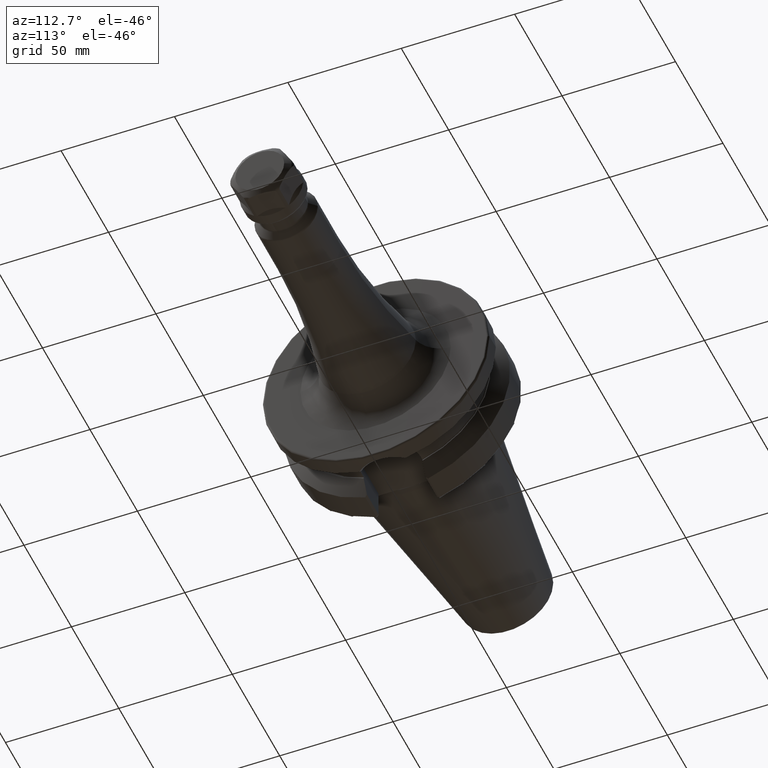
[diagram: clean part render]
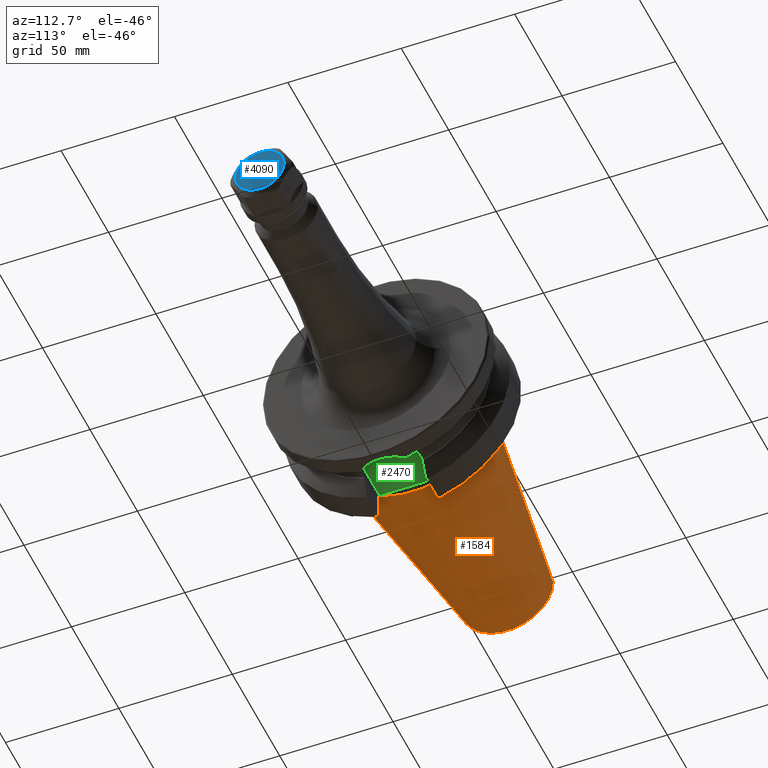
[diagram: same view with three faces highlighted in distinct colors, each labeled with its STEP entity id]
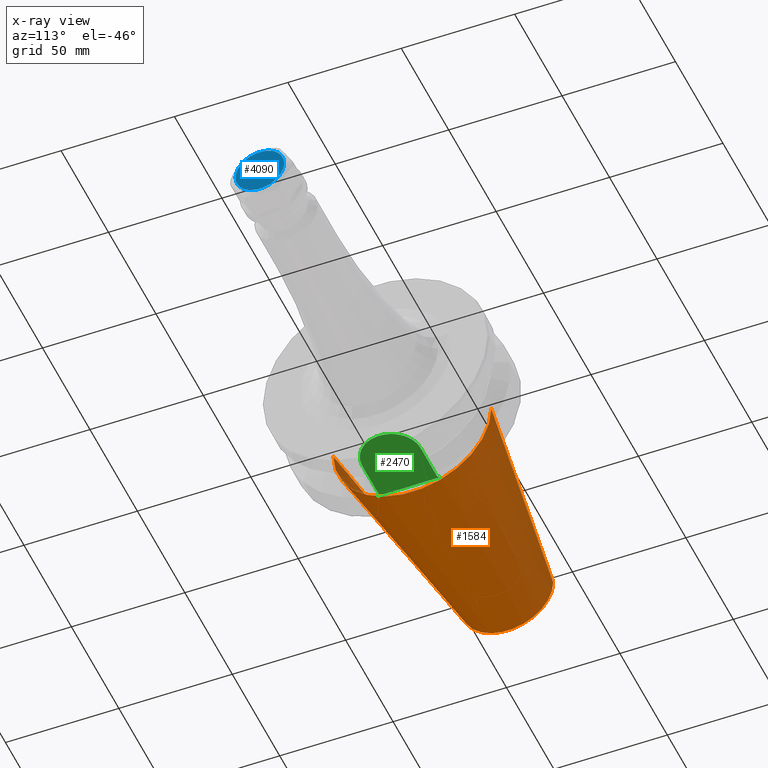
[diagram: x-ray of the same camera — body ghosted, the three highlighted faces saturated]
A machine part, auxiliary view with three faces highlighted in distinct colors.
The next image is the same camera in x-ray (body ghosted, the three faces saturated) — at least one of them is partly hidden behind the body in this view.
Their STEP definitions:

[orange] entity #1584 — the highlighted conical surface has half-angle 8.298 deg.
#32=CARTESIAN_POINT('',(-1.009443186692E2,0.E0,0.E0));
#33=DIRECTION('',(-1.E0,0.E0,0.E0));
#34=DIRECTION('',(0.E0,1.E0,0.E0));
#35=AXIS2_PLACEMENT_3D('',#32,#33,#34);
#47=DIRECTION('',(-9.895312636440E-1,-1.443186691705E-1,0.E0));
#48=VECTOR('',#47,1.013865167670E2);
#49=CARTESIAN_POINT('',(-6.191906162849E-1,3.483469384295E1,0.E0));
#50=LINE('',#49,#48);
#51=DIRECTION('',(-9.895312636440E-1,1.443186691705E-1,0.E0));
#52=VECTOR('',#51,1.013865167670E2);
#53=CARTESIAN_POINT('',(-6.191906162849E-1,-3.483469384295E1,0.E0));
#54=LINE('',#53,#52);
#55=CARTESIAN_POINT('',(-6.191906162850E-1,0.E0,0.E0));
#56=DIRECTION('',(-1.E0,0.E0,0.E0));
#57=DIRECTION('',(0.E0,1.E0,0.E0));
#58=AXIS2_PLACEMENT_3D('',#55,#56,#57);
#1244=CARTESIAN_POINT('',(-1.009443186692E2,2.020272667130E1,0.E0));
#1246=VERTEX_POINT('',#1244);
#1248=CARTESIAN_POINT('',(-1.009443186692E2,-2.020272667130E1,0.E0));
#1250=VERTEX_POINT('',#1248);
#1463=CARTESIAN_POINT('',(-6.191906162849E-1,3.483469384295E1,0.E0));
#1464=VERTEX_POINT('',#1463);
#1465=CARTESIAN_POINT('',(-6.191906162849E-1,-3.483469384295E1,0.E0));
#1466=VERTEX_POINT('',#1465);
#1572=CARTESIAN_POINT('',(-5.078175464273E1,0.E0,0.E0));
#1573=DIRECTION('',(1.E0,0.E0,0.E0));
#1574=DIRECTION('',(0.E0,-1.E0,0.E0));
#1575=AXIS2_PLACEMENT_3D('',#1572,#1573,#1574);
#1576=CONICAL_SURFACE('',#1575,2.751871025712E1,8.297826828206E0);
#1577=ORIENTED_EDGE('',*,*,#1562,.T.);
#1578=ORIENTED_EDGE('',*,*,#1539,.T.);
#1579=ORIENTED_EDGE('',*,*,#1566,.F.);
#1581=ORIENTED_EDGE('',*,*,#1580,.F.);
#1582=EDGE_LOOP('',(#1577,#1578,#1579,#1581));
#1583=FACE_OUTER_BOUND('',#1582,.F.);
#1584=ADVANCED_FACE('',(#1583),#1576,.T.);
#36=CIRCLE('',#35,2.020272667130E1);
#59=CIRCLE('',#58,3.483469384295E1);
#1539=EDGE_CURVE('',#1246,#1250,#36,.T.);
#1562=EDGE_CURVE('',#1464,#1246,#50,.T.);
#1566=EDGE_CURVE('',#1466,#1250,#54,.T.);
#1580=EDGE_CURVE('',#1464,#1466,#59,.T.);

[blue] entity #4090 — the highlighted planar face has unit normal (1, 0, 0).
#3473=CARTESIAN_POINT('',(1.78E1,0.E0,0.E0));
#3474=DIRECTION('',(-1.E0,0.E0,0.E0));
#3475=DIRECTION('',(0.E0,1.E0,0.E0));
#3476=AXIS2_PLACEMENT_3D('',#3473,#3474,#3475);
#3839=CARTESIAN_POINT('',(1.78E1,0.E0,0.E0));
#3840=DIRECTION('',(1.E0,0.E0,0.E0));
#3841=DIRECTION('',(0.E0,1.E0,0.E0));
#3842=AXIS2_PLACEMENT_3D('',#3839,#3840,#3841);
#4006=CARTESIAN_POINT('',(1.78E1,1.075E1,0.E0));
#4007=CARTESIAN_POINT('',(1.78E1,-1.075E1,0.E0));
#4008=VERTEX_POINT('',#4006);
#4009=VERTEX_POINT('',#4007);
#4079=CARTESIAN_POINT('',(1.78E1,0.E0,0.E0));
#4080=DIRECTION('',(1.E0,0.E0,0.E0));
#4081=DIRECTION('',(0.E0,-1.E0,0.E0));
#4082=AXIS2_PLACEMENT_3D('',#4079,#4080,#4081);
#4083=PLANE('',#4082);
#4085=ORIENTED_EDGE('',*,*,#4084,.T.);
#4087=ORIENTED_EDGE('',*,*,#4086,.F.);
#4088=EDGE_LOOP('',(#4085,#4087));
#4089=FACE_OUTER_BOUND('',#4088,.F.);
#4090=ADVANCED_FACE('',(#4089),#4083,.T.);
#3477=CIRCLE('',#3476,1.075E1);
#3843=CIRCLE('',#3842,1.075E1);
#4084=EDGE_CURVE('',#4008,#4009,#3477,.T.);
#4086=EDGE_CURVE('',#4008,#4009,#3843,.T.);

[green] entity #2470 — the highlighted planar face has unit normal (0, 0, 1).
#116=CARTESIAN_POINT('',(3.E0,5.151759408202E0,-3.52E1));
#117=CARTESIAN_POINT('',(3.E0,4.661054534870E0,-3.52E1));
#118=CARTESIAN_POINT('',(2.985185415827E0,3.679726334622E0,-3.52E1));
#119=CARTESIAN_POINT('',(2.950323079572E0,2.207949548567E0,-3.52E1));
#120=CARTESIAN_POINT('',(2.926055980585E0,7.360772187789E-1,-3.52E1));
#121=CARTESIAN_POINT('',(2.926055295134E0,-7.360096390892E-1,-3.52E1));
#122=CARTESIAN_POINT('',(2.950321957577E0,-2.207902449886E0,-3.52E1));
#123=CARTESIAN_POINT('',(2.985185074233E0,-3.679708044781E0,-3.52E1));
#124=CARTESIAN_POINT('',(3.E0,-4.661048861242E0,-3.52E1));
#125=CARTESIAN_POINT('',(3.E0,-5.151759408202E0,-3.52E1));
#147=DIRECTION('',(7.071067811865E-1,-7.071067811865E-1,0.E0));
#148=VECTOR('',#147,1.414213562373E0);
#149=CARTESIAN_POINT('',(3.E0,1.39025E1,-3.52E1));
#150=LINE('',#149,#148);
#733=DIRECTION('',(-7.071067811865E-1,-7.071067811865E-1,0.E0));
#734=VECTOR('',#733,1.414213562373E0);
#735=CARTESIAN_POINT('',(4.E0,-1.29025E1,-3.52E1));
#736=LINE('',#735,#734);
#737=DIRECTION('',(-1.E0,0.E0,0.E0));
#738=VECTOR('',#737,1.73475E1);
#739=CARTESIAN_POINT('',(2.13475E1,1.29025E1,-3.52E1));
#740=LINE('',#739,#738);
#741=DIRECTION('',(0.E0,-1.E0,0.E0));
#742=VECTOR('',#741,8.750740591798E0);
#743=CARTESIAN_POINT('',(3.E0,1.39025E1,-3.52E1));
#744=LINE('',#743,#742);
#745=DIRECTION('',(0.E0,-1.E0,0.E0));
#746=VECTOR('',#745,8.750740591798E0);
#747=CARTESIAN_POINT('',(3.E0,-5.151759408202E0,-3.52E1));
#748=LINE('',#747,#746);
#749=DIRECTION('',(1.E0,0.E0,0.E0));
#750=VECTOR('',#749,1.73475E1);
#751=CARTESIAN_POINT('',(4.E0,-1.29025E1,-3.52E1));
#752=LINE('',#751,#750);
#753=CARTESIAN_POINT('',(2.13475E1,0.E0,-3.52E1));
#754=DIRECTION('',(0.E0,0.E0,1.E0));
#755=DIRECTION('',(0.E0,-1.E0,0.E0));
#756=AXIS2_PLACEMENT_3D('',#753,#754,#755);
#1390=CARTESIAN_POINT('',(2.13475E1,-1.29025E1,-3.52E1));
#1391=CARTESIAN_POINT('',(2.13475E1,1.29025E1,-3.52E1));
#1392=VERTEX_POINT('',#1390);
#1393=VERTEX_POINT('',#1391);
#1394=CARTESIAN_POINT('',(3.E0,5.151759408202E0,-3.52E1));
#1395=VERTEX_POINT('',#1394);
#1396=CARTESIAN_POINT('',(3.E0,-5.151759408202E0,-3.52E1));
#1397=VERTEX_POINT('',#1396);
#1443=CARTESIAN_POINT('',(4.E0,1.29025E1,-3.52E1));
#1445=VERTEX_POINT('',#1443);
#1447=CARTESIAN_POINT('',(3.E0,1.39025E1,-3.52E1));
#1449=VERTEX_POINT('',#1447);
#1453=CARTESIAN_POINT('',(3.E0,-1.39025E1,-3.52E1));
#1454=VERTEX_POINT('',#1453);
#1455=CARTESIAN_POINT('',(4.E0,-1.29025E1,-3.52E1));
#1457=VERTEX_POINT('',#1455);
#2455=CARTESIAN_POINT('',(0.E0,0.E0,-3.52E1));
#2456=DIRECTION('',(0.E0,0.E0,1.E0));
#2457=DIRECTION('',(1.E0,0.E0,0.E0));
#2458=AXIS2_PLACEMENT_3D('',#2455,#2456,#2457);
#2459=PLANE('',#2458);
#2460=ORIENTED_EDGE('',*,*,#1731,.T.);
#2461=ORIENTED_EDGE('',*,*,#1712,.F.);
#2462=ORIENTED_EDGE('',*,*,#1676,.T.);
#2463=ORIENTED_EDGE('',*,*,#1655,.T.);
#2464=ORIENTED_EDGE('',*,*,#1688,.T.);
#2465=ORIENTED_EDGE('',*,*,#2450,.F.);
#2466=ORIENTED_EDGE('',*,*,#1886,.T.);
#2467=ORIENTED_EDGE('',*,*,#1980,.T.);
#2468=EDGE_LOOP('',(#2460,#2461,#2462,#2463,#2464,#2465,#2466,#2467));
#2469=FACE_OUTER_BOUND('',#2468,.F.);
#2470=ADVANCED_FACE('',(#2469),#2459,.F.);
#126=B_SPLINE_CURVE_WITH_KNOTS('',3,(#116,#117,#118,#119,#120,#121,#122,#123,
#124,#125),.UNSPECIFIED.,.F.,.F.,(4,1,1,1,1,1,1,4),(0.E0,1.428571428571E-1,
2.857142857143E-1,4.285714285714E-1,5.714285714286E-1,7.142857142857E-1,
8.571428571429E-1,1.E0),.UNSPECIFIED.);
#757=CIRCLE('',#756,1.29025E1);
#1655=EDGE_CURVE('',#1395,#1397,#126,.T.);
#1676=EDGE_CURVE('',#1449,#1395,#744,.T.);
#1688=EDGE_CURVE('',#1397,#1454,#748,.T.);
#1712=EDGE_CURVE('',#1449,#1445,#150,.T.);
#1731=EDGE_CURVE('',#1393,#1445,#740,.T.);
#1886=EDGE_CURVE('',#1457,#1392,#752,.T.);
#1980=EDGE_CURVE('',#1392,#1393,#757,.T.);
#2450=EDGE_CURVE('',#1457,#1454,#736,.T.);